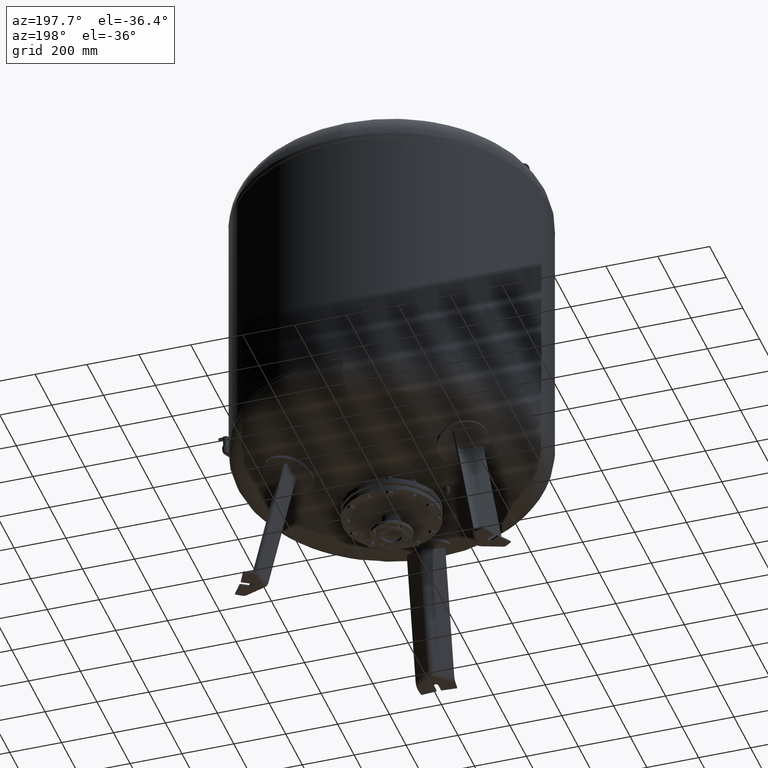
[diagram: clean part render]
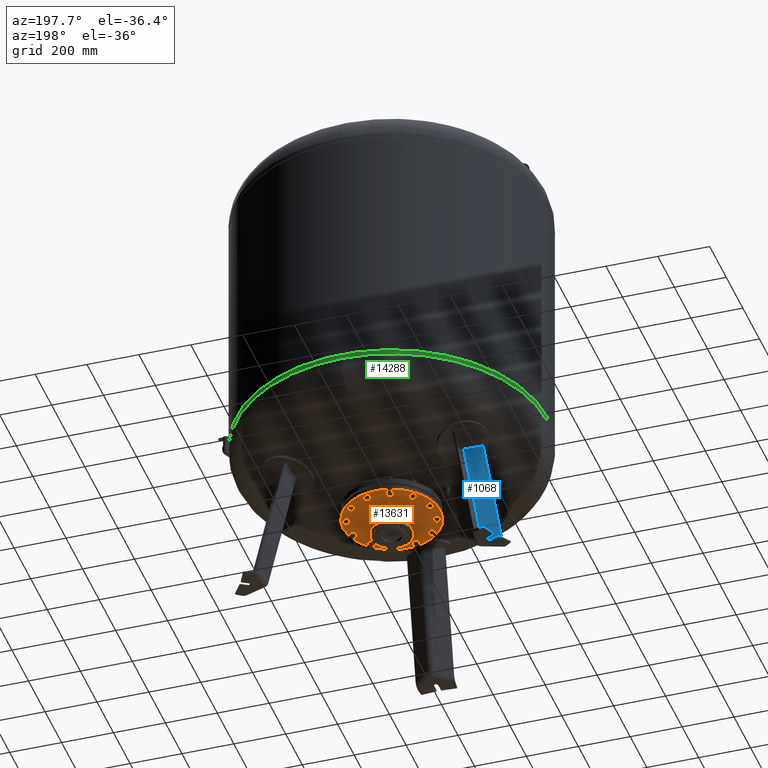
[diagram: same view with three faces highlighted in distinct colors, each labeled with its STEP entity id]
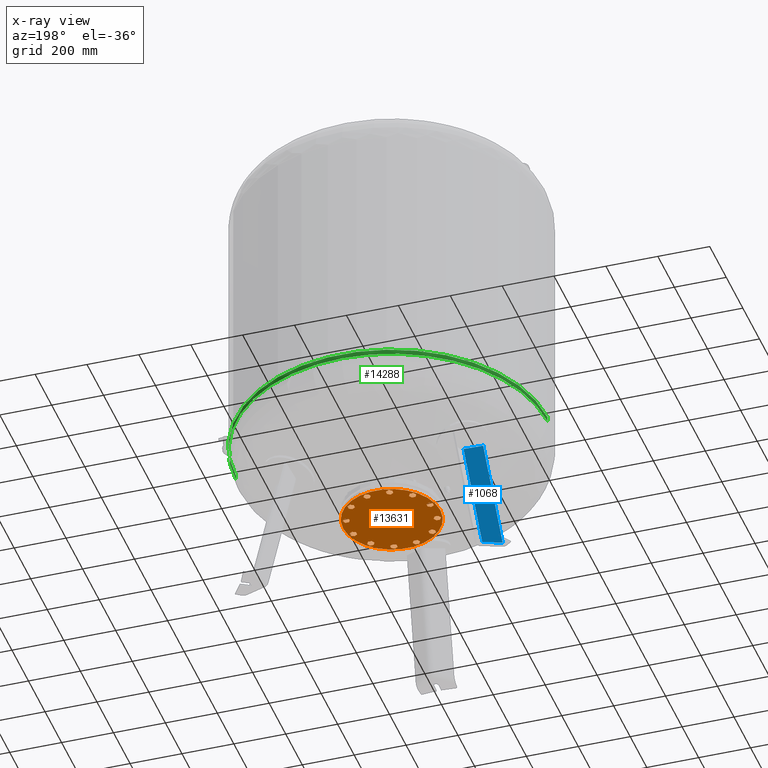
[diagram: x-ray of the same camera — body ghosted, the three highlighted faces saturated]
A machine part, auxiliary view with three faces highlighted in distinct colors.
The next image is the same camera in x-ray (body ghosted, the three faces saturated) — at least one of them is partly hidden behind the body in this view.
Their STEP definitions:

[orange] entity #13631 — the highlighted planar face has unit normal (0, 0, -1).
#5775=CARTESIAN_POINT('',(-38.050000000000018,-4.163799E-015,383.0));
#5776=VERTEX_POINT('',#5775);
#5792=CARTESIAN_POINT('',(38.049999999999983,-8.823426E-015,383.0));
#5793=VERTEX_POINT('',#5792);
#5800=CARTESIAN_POINT('',(-8.604691E-015,-4.163799E-015,383.0));
#5801=DIRECTION('',(0.0,0.0,-1.0));
#5802=DIRECTION('',(-1.0,0.0,0.0));
#5803=AXIS2_PLACEMENT_3D('',#5800,#5801,#5802);
#5804=CIRCLE('',#5803,38.050000000000004);
#5805=EDGE_CURVE('',#5793,#5776,#5804,.T.);
#5815=CARTESIAN_POINT('',(-187.500000000000000,-4.163799E-015,383.000000000000110));
#5816=VERTEX_POINT('',#5815);
#5825=CARTESIAN_POINT('',(187.500000000000000,-2.712517E-014,383.000000000000110));
#5826=VERTEX_POINT('',#5825);
#5827=CARTESIAN_POINT('',(-8.604691E-015,-4.163799E-015,383.000000000000110));
#5828=DIRECTION('',(0.0,0.0,-1.0));
#5829=DIRECTION('',(-1.0,0.0,0.0));
#5830=AXIS2_PLACEMENT_3D('',#5827,#5828,#5829);
#5831=CIRCLE('',#5830,187.500000000000000);
#5832=EDGE_CURVE('',#5826,#5816,#5831,.T.);
#7805=CARTESIAN_POINT('',(43.352190054672320,-175.648982363969960,383.0));
#7806=VERTEX_POINT('',#7805);
#7807=CARTESIAN_POINT('',(55.352190054672313,-168.720779133694460,383.0));
#7808=VERTEX_POINT('',#7807);
#7809=CARTESIAN_POINT('',(43.352190054672320,-175.648982363969960,383.0));
#7810=DIRECTION('',(0.866025403784439,0.500000000000000,0.0));
#7811=VECTOR('',#7810,13.856406460551009);
#7812=LINE('',#7809,#7811);
#7813=EDGE_CURVE('',#7806,#7808,#7812,.T.);
#7845=CARTESIAN_POINT('',(31.352190054672334,-168.720779133694460,383.0));
#7846=VERTEX_POINT('',#7845);
#7847=CARTESIAN_POINT('',(31.352190054672334,-168.720779133694460,383.0));
#7848=DIRECTION('',(0.866025403784439,-0.500000000000000,0.0));
#7849=VECTOR('',#7848,13.856406460551002);
#7850=LINE('',#7847,#7849);
#7851=EDGE_CURVE('',#7846,#7806,#7850,.T.);
#7876=CARTESIAN_POINT('',(31.352190054672349,-154.864372673143440,383.0));
#7877=VERTEX_POINT('',#7876);
#7878=CARTESIAN_POINT('',(31.352190054672349,-154.864372673143440,383.0));
#7879=DIRECTION('',(0.0,-1.0,0.0));
#7880=VECTOR('',#7879,13.856406460551028);
#7881=LINE('',#7878,#7880);
#7882=EDGE_CURVE('',#7877,#7846,#7881,.T.);
#7907=CARTESIAN_POINT('',(43.352190054672320,-147.936169442867940,383.0));
#7908=VERTEX_POINT('',#7907);
#7909=CARTESIAN_POINT('',(43.352190054672320,-147.936169442867940,383.0));
#7910=DIRECTION('',(-0.866025403784438,-0.500000000000000,0.0));
#7911=VECTOR('',#7910,13.856406460550989);
#7912=LINE('',#7909,#7911);
#7913=EDGE_CURVE('',#7908,#7877,#7912,.T.);
#7938=CARTESIAN_POINT('',(55.352190054672313,-154.864372673143440,383.0));
#7939=VERTEX_POINT('',#7938);
#7940=CARTESIAN_POINT('',(55.352190054672313,-168.720779133694460,383.0));
#7941=DIRECTION('',(0.0,1.0,0.0));
#7942=VECTOR('',#7941,13.856406460551028);
#7943=LINE('',#7940,#7942);
#7944=EDGE_CURVE('',#7808,#7939,#7943,.T.);
#7969=CARTESIAN_POINT('',(55.352190054672313,-154.864372673143440,383.0));
#7970=DIRECTION('',(-0.866025403784439,0.500000000000000,0.0));
#7971=VECTOR('',#7970,13.856406460551009);
#7972=LINE('',#7969,#7971);
#7973=EDGE_CURVE('',#7939,#7908,#7972,.T.);
#8279=CARTESIAN_POINT('',(125.368589079022360,-130.440385848746640,383.0));
#8280=VERTEX_POINT('',#8279);
#8281=CARTESIAN_POINT('',(132.296792309297840,-118.440385848746640,383.0));
#8282=VERTEX_POINT('',#8281);
#8283=CARTESIAN_POINT('',(125.368589079022360,-130.440385848746640,383.0));
#8284=DIRECTION('',(0.499999999999999,0.866025403784439,0.0));
#8285=VECTOR('',#8284,13.856406460551007);
#8286=LINE('',#8283,#8285);
#8287=EDGE_CURVE('',#8280,#8282,#8286,.T.);
#8319=CARTESIAN_POINT('',(111.512182618471340,-130.440385848746640,383.0));
#8320=VERTEX_POINT('',#8319);
#8321=CARTESIAN_POINT('',(111.512182618471340,-130.440385848746640,383.0));
#8322=DIRECTION('',(1.0,0.0,0.0));
#8323=VECTOR('',#8322,13.856406460551014);
#8324=LINE('',#8321,#8323);
#8325=EDGE_CURVE('',#8320,#8280,#8324,.T.);
#8350=CARTESIAN_POINT('',(104.583979388195840,-118.440385848746660,383.0));
#8351=VERTEX_POINT('',#8350);
#8352=CARTESIAN_POINT('',(104.583979388195840,-118.440385848746660,383.0));
#8353=DIRECTION('',(0.500000000000000,-0.866025403784439,0.0));
#8354=VECTOR('',#8353,13.856406460551002);
#8355=LINE('',#8352,#8354);
#8356=EDGE_CURVE('',#8351,#8320,#8355,.T.);
#8381=CARTESIAN_POINT('',(111.512182618471340,-106.440385848746640,383.0));
#8382=VERTEX_POINT('',#8381);
#8383=CARTESIAN_POINT('',(111.512182618471340,-106.440385848746640,383.0));
#8384=DIRECTION('',(-0.499999999999999,-0.866025403784439,0.0));
#8385=VECTOR('',#8384,13.856406460551026);
#8386=LINE('',#8383,#8385);
#8387=EDGE_CURVE('',#8382,#8351,#8386,.T.);
#8412=CARTESIAN_POINT('',(125.368589079022340,-106.440385848746640,383.0));
#8413=VERTEX_POINT('',#8412);
#8414=CARTESIAN_POINT('',(132.296792309297840,-118.440385848746640,383.0));
#8415=DIRECTION('',(-0.500000000000000,0.866025403784439,0.0));
#8416=VECTOR('',#8415,13.856406460551014);
#8417=LINE('',#8414,#8416);
#8418=EDGE_CURVE('',#8282,#8413,#8417,.T.);
#8443=CARTESIAN_POINT('',(125.368589079022340,-106.440385848746640,383.0));
#8444=DIRECTION('',(-1.0,0.0,0.0));
#8445=VECTOR('',#8444,13.856406460551000);
#8446=LINE('',#8443,#8445);
#8447=EDGE_CURVE('',#8413,#8382,#8446,.T.);
#8753=CARTESIAN_POINT('',(173.792575903418990,-50.280393284947714,383.0));
#8754=VERTEX_POINT('',#8753);
#8755=CARTESIAN_POINT('',(173.792575903418990,-36.423986824396700,383.0));
#8756=VERTEX_POINT('',#8755);
#8757=CARTESIAN_POINT('',(173.792575903418990,-50.280393284947714,383.0));
#8758=DIRECTION('',(0.0,1.0,0.0));
#8759=VECTOR('',#8758,13.856406460551014);
#8760=LINE('',#8757,#8759);
#8761=EDGE_CURVE('',#8754,#8756,#8760,.T.);
#8793=CARTESIAN_POINT('',(161.792575903418990,-57.208596515223185,383.0));
#8794=VERTEX_POINT('',#8793);
#8795=CARTESIAN_POINT('',(161.792575903418990,-57.208596515223185,383.0));
#8796=DIRECTION('',(0.866025403784440,0.499999999999998,0.0));
#8797=VECTOR('',#8796,13.856406460551000);
#8798=LINE('',#8795,#8797);
#8799=EDGE_CURVE('',#8794,#8754,#8798,.T.);
#8824=CARTESIAN_POINT('',(149.792575903418990,-50.280393284947706,383.0));
#8825=VERTEX_POINT('',#8824);
#8826=CARTESIAN_POINT('',(149.792575903418990,-50.280393284947706,383.0));
#8827=DIRECTION('',(0.866025403784440,-0.499999999999998,0.0));
#8828=VECTOR('',#8827,13.856406460551003);
#8829=LINE('',#8826,#8828);
#8830=EDGE_CURVE('',#8825,#8794,#8829,.T.);
#8855=CARTESIAN_POINT('',(149.792575903419020,-36.423986824396692,383.0));
#8856=VERTEX_POINT('',#8855);
#8857=CARTESIAN_POINT('',(149.792575903419020,-36.423986824396692,383.0));
#8858=DIRECTION('',(0.0,-1.0,0.0));
#8859=VECTOR('',#8858,13.856406460551014);
#8860=LINE('',#8857,#8859);
#8861=EDGE_CURVE('',#8856,#8825,#8860,.T.);
#8886=CARTESIAN_POINT('',(161.792575903418990,-29.495783594121182,383.0));
#8887=VERTEX_POINT('',#8886);
#8888=CARTESIAN_POINT('',(173.792575903418990,-36.423986824396700,383.0));
#8889=DIRECTION('',(-0.866025403784438,0.500000000000000,0.0));
#8890=VECTOR('',#8889,13.856406460551023);
#8891=LINE('',#8888,#8890);
#8892=EDGE_CURVE('',#8756,#8887,#8891,.T.);
#8917=CARTESIAN_POINT('',(161.792575903418990,-29.495783594121182,383.0));
#8918=DIRECTION('',(-0.866025403784438,-0.500000000000001,0.0));
#8919=VECTOR('',#8918,13.856406460550994);
#8920=LINE('',#8917,#8919);
#8921=EDGE_CURVE('',#8887,#8856,#8920,.T.);
#9227=CARTESIAN_POINT('',(175.648982363969960,43.352190054672327,383.0));
#9228=VERTEX_POINT('',#9227);
#9229=CARTESIAN_POINT('',(168.720779133694460,55.352190054672320,383.0));
#9230=VERTEX_POINT('',#9229);
#9231=CARTESIAN_POINT('',(175.648982363969960,43.352190054672327,383.0));
#9232=DIRECTION('',(-0.500000000000000,0.866025403784439,0.0));
#9233=VECTOR('',#9232,13.856406460551009);
#9234=LINE('',#9231,#9233);
#9235=EDGE_CURVE('',#9228,#9230,#9234,.T.);
#9267=CARTESIAN_POINT('',(168.720779133694460,31.352190054672338,383.0));
#9268=VERTEX_POINT('',#9267);
#9269=CARTESIAN_POINT('',(168.720779133694460,31.352190054672338,383.0));
#9270=DIRECTION('',(0.500000000000000,0.866025403784439,0.0));
#9271=VECTOR('',#9270,13.856406460551003);
#9272=LINE('',#9269,#9271);
#9273=EDGE_CURVE('',#9268,#9228,#9272,.T.);
#9298=CARTESIAN_POINT('',(154.864372673143440,31.352190054672352,383.0));
#9299=VERTEX_POINT('',#9298);
#9300=CARTESIAN_POINT('',(154.864372673143440,31.352190054672352,383.0));
#9301=DIRECTION('',(1.0,0.0,0.0));
#9302=VECTOR('',#9301,13.856406460551028);
#9303=LINE('',#9300,#9302);
#9304=EDGE_CURVE('',#9299,#9268,#9303,.T.);
#9329=CARTESIAN_POINT('',(147.936169442867940,43.352190054672327,383.0));
#9330=VERTEX_POINT('',#9329);
#9331=CARTESIAN_POINT('',(147.936169442867940,43.352190054672327,383.0));
#9332=DIRECTION('',(0.500000000000000,-0.866025403784439,0.0));
#9333=VECTOR('',#9332,13.856406460550991);
#9334=LINE('',#9331,#9333);
#9335=EDGE_CURVE('',#9330,#9299,#9334,.T.);
#9360=CARTESIAN_POINT('',(154.864372673143440,55.352190054672320,383.0));
#9361=VERTEX_POINT('',#9360);
#9362=CARTESIAN_POINT('',(168.720779133694460,55.352190054672320,383.0));
#9363=DIRECTION('',(-1.0,0.0,0.0));
#9364=VECTOR('',#9363,13.856406460551028);
#9365=LINE('',#9362,#9364);
#9366=EDGE_CURVE('',#9230,#9361,#9365,.T.);
#9391=CARTESIAN_POINT('',(154.864372673143440,55.352190054672320,383.0));
#9392=DIRECTION('',(-0.500000000000000,-0.866025403784439,0.0));
#9393=VECTOR('',#9392,13.856406460551009);
#9394=LINE('',#9391,#9393);
#9395=EDGE_CURVE('',#9361,#9330,#9394,.T.);
#9701=CARTESIAN_POINT('',(130.440385848746670,125.368589079022270,383.0));
#9702=VERTEX_POINT('',#9701);
#9703=CARTESIAN_POINT('',(118.440385848746690,132.296792309297790,383.0));
#9704=VERTEX_POINT('',#9703);
#9705=CARTESIAN_POINT('',(130.440385848746670,125.368589079022270,383.0));
#9706=DIRECTION('',(-0.866025403784438,0.500000000000001,0.0));
#9707=VECTOR('',#9706,13.856406460551009);
#9708=LINE('',#9705,#9707);
#9709=EDGE_CURVE('',#9702,#9704,#9708,.T.);
#9741=CARTESIAN_POINT('',(130.440385848746670,111.512182618471270,383.0));
#9742=VERTEX_POINT('',#9741);
#9743=CARTESIAN_POINT('',(130.440385848746670,111.512182618471270,383.0));
#9744=DIRECTION('',(0.0,1.0,0.0));
#9745=VECTOR('',#9744,13.856406460551000);
#9746=LINE('',#9743,#9745);
#9747=EDGE_CURVE('',#9742,#9702,#9746,.T.);
#9772=CARTESIAN_POINT('',(118.440385848746700,104.583979388195790,383.0));
#9773=VERTEX_POINT('',#9772);
#9774=CARTESIAN_POINT('',(118.440385848746700,104.583979388195790,383.0));
#9775=DIRECTION('',(0.866025403784439,0.500000000000000,0.0));
#9776=VECTOR('',#9775,13.856406460550982);
#9777=LINE('',#9774,#9776);
#9778=EDGE_CURVE('',#9773,#9742,#9777,.T.);
#9803=CARTESIAN_POINT('',(106.440385848746700,111.512182618471290,383.0));
#9804=VERTEX_POINT('',#9803);
#9805=CARTESIAN_POINT('',(106.440385848746700,111.512182618471290,383.0));
#9806=DIRECTION('',(0.866025403784439,-0.500000000000000,0.0));
#9807=VECTOR('',#9806,13.856406460551014);
#9808=LINE('',#9805,#9807);
#9809=EDGE_CURVE('',#9804,#9773,#9808,.T.);
#9834=CARTESIAN_POINT('',(106.440385848746700,125.368589079022270,383.0));
#9835=VERTEX_POINT('',#9834);
#9836=CARTESIAN_POINT('',(118.440385848746690,132.296792309297790,383.0));
#9837=DIRECTION('',(-0.866025403784438,-0.500000000000001,0.0));
#9838=VECTOR('',#9837,13.856406460551009);
#9839=LINE('',#9836,#9838);
#9840=EDGE_CURVE('',#9704,#9835,#9839,.T.);
#9865=CARTESIAN_POINT('',(106.440385848746700,125.368589079022270,383.0));
#9866=DIRECTION('',(0.0,-1.0,0.0));
#9867=VECTOR('',#9866,13.856406460550986);
#9868=LINE('',#9865,#9867);
#9869=EDGE_CURVE('',#9835,#9804,#9868,.T.);
#10175=CARTESIAN_POINT('',(50.280393284947706,173.792575903418990,383.0));
#10176=VERTEX_POINT('',#10175);
#10177=CARTESIAN_POINT('',(36.423986824396678,173.792575903418940,383.0));
#10178=VERTEX_POINT('',#10177);
#10179=CARTESIAN_POINT('',(50.280393284947706,173.792575903418990,383.0));
#10180=DIRECTION('',(-1.0,0.0,0.0));
#10181=VECTOR('',#10180,13.856406460551028);
#10182=LINE('',#10179,#10181);
#10183=EDGE_CURVE('',#10176,#10178,#10182,.T.);
#10215=CARTESIAN_POINT('',(57.208596515223178,161.792575903418990,383.0));
#10216=VERTEX_POINT('',#10215);
#10217=CARTESIAN_POINT('',(57.208596515223178,161.792575903418990,383.0));
#10218=DIRECTION('',(-0.499999999999998,0.866025403784440,0.0));
#10219=VECTOR('',#10218,13.856406460551000);
#10220=LINE('',#10217,#10219);
#10221=EDGE_CURVE('',#10216,#10176,#10220,.T.);
#10246=CARTESIAN_POINT('',(50.280393284947692,149.792575903418990,383.0));
#10247=VERTEX_POINT('',#10246);
#10248=CARTESIAN_POINT('',(50.280393284947692,149.792575903418990,383.0));
#10249=DIRECTION('',(0.499999999999999,0.866025403784439,0.0));
#10250=VECTOR('',#10249,13.856406460551007);
#10251=LINE('',#10248,#10250);
#10252=EDGE_CURVE('',#10247,#10216,#10251,.T.);
#10277=CARTESIAN_POINT('',(36.423986824396678,149.792575903418990,383.0));
#10278=VERTEX_POINT('',#10277);
#10279=CARTESIAN_POINT('',(36.423986824396678,149.792575903418990,383.0));
#10280=DIRECTION('',(1.0,0.0,0.0));
#10281=VECTOR('',#10280,13.856406460551014);
#10282=LINE('',#10279,#10281);
#10283=EDGE_CURVE('',#10278,#10247,#10282,.T.);
#10308=CARTESIAN_POINT('',(29.495783594121185,161.792575903418990,383.0));
#10309=VERTEX_POINT('',#10308);
#10310=CARTESIAN_POINT('',(36.423986824396678,173.792575903418940,383.0));
#10311=DIRECTION('',(-0.500000000000001,-0.866025403784438,0.0));
#10312=VECTOR('',#10311,13.856406460550961);
#10313=LINE('',#10310,#10312);
#10314=EDGE_CURVE('',#10178,#10309,#10313,.T.);
#10339=CARTESIAN_POINT('',(29.495783594121185,161.792575903418990,383.0));
#10340=DIRECTION('',(0.499999999999999,-0.866025403784439,0.0));
#10341=VECTOR('',#10340,13.856406460551010);
#10342=LINE('',#10339,#10341);
#10343=EDGE_CURVE('',#10309,#10278,#10342,.T.);
#10649=CARTESIAN_POINT('',(-43.352190054672327,175.648982363969990,383.0));
#10650=VERTEX_POINT('',#10649);
#10651=CARTESIAN_POINT('',(-55.352190054672306,168.720779133694460,383.0));
#10652=VERTEX_POINT('',#10651);
#10653=CARTESIAN_POINT('',(-43.352190054672327,175.648982363969990,383.0));
#10654=DIRECTION('',(-0.866025403784438,-0.500000000000002,0.0));
#10655=VECTOR('',#10654,13.856406460551009);
#10656=LINE('',#10653,#10655);
#10657=EDGE_CURVE('',#10650,#10652,#10656,.T.);
#10689=CARTESIAN_POINT('',(-31.352190054672313,168.720779133694490,383.0));
#10690=VERTEX_POINT('',#10689);
#10691=CARTESIAN_POINT('',(-31.352190054672313,168.720779133694490,383.0));
#10692=DIRECTION('',(-0.866025403784439,0.499999999999999,0.0));
#10693=VECTOR('',#10692,13.856406460551026);
#10694=LINE('',#10691,#10693);
#10695=EDGE_CURVE('',#10690,#10650,#10694,.T.);
#10720=CARTESIAN_POINT('',(-31.352190054672327,154.864372673143460,383.0));
#10721=VERTEX_POINT('',#10720);
#10722=CARTESIAN_POINT('',(-31.352190054672327,154.864372673143460,383.0));
#10723=DIRECTION('',(0.0,1.0,0.0));
#10724=VECTOR('',#10723,13.856406460551028);
#10725=LINE('',#10722,#10724);
#10726=EDGE_CURVE('',#10721,#10690,#10725,.T.);
#10751=CARTESIAN_POINT('',(-43.352190054672334,147.936169442867940,383.0));
#10752=VERTEX_POINT('',#10751);
#10753=CARTESIAN_POINT('',(-43.352190054672334,147.936169442867940,383.0));
#10754=DIRECTION('',(0.866025403784438,0.500000000000001,0.0));
#10755=VECTOR('',#10754,13.856406460551034);
#10756=LINE('',#10753,#10755);
#10757=EDGE_CURVE('',#10752,#10721,#10756,.T.);
#10782=CARTESIAN_POINT('',(-55.352190054672306,154.864372673143460,383.0));
#10783=VERTEX_POINT('',#10782);
#10784=CARTESIAN_POINT('',(-55.352190054672306,168.720779133694460,383.0));
#10785=DIRECTION('',(0.0,-1.0,0.0));
#10786=VECTOR('',#10785,13.856406460551000);
#10787=LINE('',#10784,#10786);
#10788=EDGE_CURVE('',#10652,#10783,#10787,.T.);
#10813=CARTESIAN_POINT('',(-55.352190054672306,154.864372673143460,383.0));
#10814=DIRECTION('',(0.866025403784437,-0.500000000000002,0.0));
#10815=VECTOR('',#10814,13.856406460551003);
#10816=LINE('',#10813,#10815);
#10817=EDGE_CURVE('',#10783,#10752,#10816,.T.);
#11123=CARTESIAN_POINT('',(-125.368589079022270,130.440385848746700,383.0));
#11124=VERTEX_POINT('',#11123);
#11125=CARTESIAN_POINT('',(-132.296792309297790,118.440385848746690,383.0));
#11126=VERTEX_POINT('',#11125);
#11127=CARTESIAN_POINT('',(-125.368589079022270,130.440385848746700,383.0));
#11128=DIRECTION('',(-0.500000000000000,-0.866025403784439,0.0));
#11129=VECTOR('',#11128,13.856406460551034);
#11130=LINE('',#11127,#11129);
#11131=EDGE_CURVE('',#11124,#11126,#11130,.T.);
#11163=CARTESIAN_POINT('',(-111.512182618471270,130.440385848746670,383.0));
#11164=VERTEX_POINT('',#11163);
#11165=CARTESIAN_POINT('',(-111.512182618471270,130.440385848746670,383.0));
#11166=DIRECTION('',(-1.0,0.0,0.0));
#11167=VECTOR('',#11166,13.856406460551000);
#11168=LINE('',#11165,#11167);
#11169=EDGE_CURVE('',#11164,#11124,#11168,.T.);
#11194=CARTESIAN_POINT('',(-104.583979388195760,118.440385848746690,383.0));
#11195=VERTEX_POINT('',#11194);
#11196=CARTESIAN_POINT('',(-104.583979388195760,118.440385848746690,383.0));
#11197=DIRECTION('',(-0.500000000000001,0.866025403784438,0.0));
#11198=VECTOR('',#11197,13.856406460551009);
#11199=LINE('',#11196,#11198);
#11200=EDGE_CURVE('',#11195,#11164,#11199,.T.);
#11225=CARTESIAN_POINT('',(-111.512182618471270,106.440385848746700,383.0));
#11226=VERTEX_POINT('',#11225);
#11227=CARTESIAN_POINT('',(-111.512182618471270,106.440385848746700,383.0));
#11228=DIRECTION('',(0.500000000000001,0.866025403784438,0.0));
#11229=VECTOR('',#11228,13.856406460551009);
#11230=LINE('',#11227,#11229);
#11231=EDGE_CURVE('',#11226,#11195,#11230,.T.);
#11256=CARTESIAN_POINT('',(-125.368589079022270,106.440385848746700,383.0));
#11257=VERTEX_POINT('',#11256);
#11258=CARTESIAN_POINT('',(-132.296792309297790,118.440385848746690,383.0));
#11259=DIRECTION('',(0.500000000000001,-0.866025403784438,0.0));
#11260=VECTOR('',#11259,13.856406460551009);
#11261=LINE('',#11258,#11260);
#11262=EDGE_CURVE('',#11126,#11257,#11261,.T.);
#11287=CARTESIAN_POINT('',(-125.368589079022270,106.440385848746700,383.0));
#11288=DIRECTION('',(1.0,0.0,0.0));
#11289=VECTOR('',#11288,13.856406460551000);
#11290=LINE('',#11287,#11289);
#11291=EDGE_CURVE('',#11257,#11226,#11290,.T.);
#11597=CARTESIAN_POINT('',(-173.792575903418960,50.280393284947714,383.0));
#11598=VERTEX_POINT('',#11597);
#11599=CARTESIAN_POINT('',(-173.792575903418960,36.423986824396714,383.0));
#11600=VERTEX_POINT('',#11599);
#11601=CARTESIAN_POINT('',(-173.792575903418960,50.280393284947714,383.0));
#11602=DIRECTION('',(0.0,-1.0,0.0));
#11603=VECTOR('',#11602,13.856406460551000);
#11604=LINE('',#11601,#11603);
#11605=EDGE_CURVE('',#11598,#11600,#11604,.T.);
#11637=CARTESIAN_POINT('',(-161.792575903419020,57.208596515223206,383.0));
#11638=VERTEX_POINT('',#11637);
#11639=CARTESIAN_POINT('',(-161.792575903419020,57.208596515223206,383.0));
#11640=DIRECTION('',(-0.866025403784438,-0.500000000000001,0.0));
#11641=VECTOR('',#11640,13.856406460550961);
#11642=LINE('',#11639,#11641);
#11643=EDGE_CURVE('',#11638,#11598,#11642,.T.);
#11668=CARTESIAN_POINT('',(-149.792575903418990,50.280393284947714,383.0));
#11669=VERTEX_POINT('',#11668);
#11670=CARTESIAN_POINT('',(-149.792575903418990,50.280393284947714,383.0));
#11671=DIRECTION('',(-0.866025403784440,0.499999999999998,0.0));
#11672=VECTOR('',#11671,13.856406460551035);
#11673=LINE('',#11670,#11672);
#11674=EDGE_CURVE('',#11669,#11638,#11673,.T.);
#11699=CARTESIAN_POINT('',(-149.792575903418990,36.423986824396685,383.0));
#11700=VERTEX_POINT('',#11699);
#11701=CARTESIAN_POINT('',(-149.792575903418990,36.423986824396685,383.0));
#11702=DIRECTION('',(0.0,1.0,0.0));
#11703=VECTOR('',#11702,13.856406460551028);
#11704=LINE('',#11701,#11703);
#11705=EDGE_CURVE('',#11700,#11669,#11704,.T.);
#11730=CARTESIAN_POINT('',(-161.792575903418990,29.495783594121210,383.0));
#11731=VERTEX_POINT('',#11730);
#11732=CARTESIAN_POINT('',(-173.792575903418960,36.423986824396714,383.0));
#11733=DIRECTION('',(0.866025403784438,-0.500000000000001,0.0));
#11734=VECTOR('',#11733,13.856406460550991);
#11735=LINE('',#11732,#11734);
#11736=EDGE_CURVE('',#11600,#11731,#11735,.T.);
#11761=CARTESIAN_POINT('',(-161.792575903418990,29.495783594121210,383.0));
#11762=DIRECTION('',(0.866025403784440,0.499999999999998,0.0));
#11763=VECTOR('',#11762,13.856406460551002);
#11764=LINE('',#11761,#11763);
#11765=EDGE_CURVE('',#11731,#11700,#11764,.T.);
#12071=CARTESIAN_POINT('',(-175.648982363969990,-43.352190054672270,383.0));
#12072=VERTEX_POINT('',#12071);
#12073=CARTESIAN_POINT('',(-168.720779133694490,-55.352190054672263,383.0));
#12074=VERTEX_POINT('',#12073);
#12075=CARTESIAN_POINT('',(-175.648982363969990,-43.352190054672270,383.0));
#12076=DIRECTION('',(0.500000000000000,-0.866025403784439,0.0));
#12077=VECTOR('',#12076,13.856406460551009);
#12078=LINE('',#12075,#12077);
#12079=EDGE_CURVE('',#12072,#12074,#12078,.T.);
#12111=CARTESIAN_POINT('',(-168.720779133694490,-31.352190054672281,383.0));
#12112=VERTEX_POINT('',#12111);
#12113=CARTESIAN_POINT('',(-168.720779133694490,-31.352190054672281,383.0));
#12114=DIRECTION('',(-0.500000000000000,-0.866025403784439,0.0));
#12115=VECTOR('',#12114,13.856406460551003);
#12116=LINE('',#12113,#12115);
#12117=EDGE_CURVE('',#12112,#12072,#12116,.T.);
#12142=CARTESIAN_POINT('',(-154.864372673143460,-31.352190054672299,383.0));
#12143=VERTEX_POINT('',#12142);
#12144=CARTESIAN_POINT('',(-154.864372673143460,-31.352190054672299,383.0));
#12145=DIRECTION('',(-1.0,0.0,0.0));
#12146=VECTOR('',#12145,13.856406460551028);
#12147=LINE('',#12144,#12146);
#12148=EDGE_CURVE('',#12143,#12112,#12147,.T.);
#12173=CARTESIAN_POINT('',(-147.936169442867960,-43.352190054672299,383.0));
#12174=VERTEX_POINT('',#12173);
#12175=CARTESIAN_POINT('',(-147.936169442867960,-43.352190054672299,383.0));
#12176=DIRECTION('',(-0.500000000000000,0.866025403784439,0.0));
#12177=VECTOR('',#12176,13.856406460551014);
#12178=LINE('',#12175,#12177);
#12179=EDGE_CURVE('',#12174,#12143,#12178,.T.);
#12204=CARTESIAN_POINT('',(-154.864372673143460,-55.352190054672263,383.0));
#12205=VERTEX_POINT('',#12204);
#12206=CARTESIAN_POINT('',(-168.720779133694490,-55.352190054672263,383.0));
#12207=DIRECTION('',(1.0,0.0,0.0));
#12208=VECTOR('',#12207,13.856406460551028);
#12209=LINE('',#12206,#12208);
#12210=EDGE_CURVE('',#12074,#12205,#12209,.T.);
#12235=CARTESIAN_POINT('',(-154.864372673143460,-55.352190054672263,383.0));
#12236=DIRECTION('',(0.500000000000001,0.866025403784438,0.0));
#12237=VECTOR('',#12236,13.856406460550984);
#12238=LINE('',#12235,#12237);
#12239=EDGE_CURVE('',#12205,#12174,#12238,.T.);
#12545=CARTESIAN_POINT('',(-130.440385848746730,-125.368589079022260,383.0));
#12546=VERTEX_POINT('',#12545);
#12547=CARTESIAN_POINT('',(-118.440385848746730,-132.296792309297760,383.0));
#12548=VERTEX_POINT('',#12547);
#12549=CARTESIAN_POINT('',(-130.440385848746730,-125.368589079022260,383.0));
#12550=DIRECTION('',(0.866025403784439,-0.500000000000000,0.0));
#12551=VECTOR('',#12550,13.856406460551014);
#12552=LINE('',#12549,#12551);
#12553=EDGE_CURVE('',#12546,#12548,#12552,.T.);
#12585=CARTESIAN_POINT('',(-130.440385848746700,-111.512182618471260,383.0));
#12586=VERTEX_POINT('',#12585);
#12587=CARTESIAN_POINT('',(-130.440385848746700,-111.512182618471260,383.0));
#12588=DIRECTION('',(0.0,-1.0,0.0));
#12589=VECTOR('',#12588,13.856406460551000);
#12590=LINE('',#12587,#12589);
#12591=EDGE_CURVE('',#12586,#12546,#12590,.T.);
#12616=CARTESIAN_POINT('',(-118.440385848746700,-104.583979388195760,383.0));
#12617=VERTEX_POINT('',#12616);
#12618=CARTESIAN_POINT('',(-118.440385848746700,-104.583979388195760,383.0));
#12619=DIRECTION('',(-0.866025403784439,-0.500000000000000,0.0));
#12620=VECTOR('',#12619,13.856406460551014);
#12621=LINE('',#12618,#12620);
#12622=EDGE_CURVE('',#12617,#12586,#12621,.T.);
#12647=CARTESIAN_POINT('',(-106.440385848746710,-111.512182618471270,383.0));
#12648=VERTEX_POINT('',#12647);
#12649=CARTESIAN_POINT('',(-106.440385848746710,-111.512182618471270,383.0));
#12650=DIRECTION('',(-0.866025403784438,0.500000000000001,0.0));
#12651=VECTOR('',#12650,13.856406460551009);
#12652=LINE('',#12649,#12651);
#12653=EDGE_CURVE('',#12648,#12617,#12652,.T.);
#12678=CARTESIAN_POINT('',(-106.440385848746710,-125.368589079022260,383.0));
#12679=VERTEX_POINT('',#12678);
#12680=CARTESIAN_POINT('',(-118.440385848746730,-132.296792309297760,383.0));
#12681=DIRECTION('',(0.866025403784439,0.499999999999999,0.0));
#12682=VECTOR('',#12681,13.856406460551026);
#12683=LINE('',#12680,#12682);
#12684=EDGE_CURVE('',#12548,#12679,#12683,.T.);
#12709=CARTESIAN_POINT('',(-106.440385848746710,-125.368589079022260,383.0));
#12710=DIRECTION('',(0.0,1.0,0.0));
#12711=VECTOR('',#12710,13.856406460550986);
#12712=LINE('',#12709,#12711);
#12713=EDGE_CURVE('',#12679,#12648,#12712,.T.);
#13315=CARTESIAN_POINT('',(-50.280393284947756,-173.792575903418960,383.0));
#13316=VERTEX_POINT('',#13315);
#13317=CARTESIAN_POINT('',(-36.423986824396742,-173.792575903418960,383.0));
#13318=VERTEX_POINT('',#13317);
#13319=CARTESIAN_POINT('',(-50.280393284947756,-173.792575903418960,383.0));
#13320=DIRECTION('',(1.0,0.0,0.0));
#13321=VECTOR('',#13320,13.856406460551014);
#13322=LINE('',#13319,#13321);
#13323=EDGE_CURVE('',#13316,#13318,#13322,.T.);
#13355=CARTESIAN_POINT('',(-57.208596515223249,-161.792575903418990,383.0));
#13356=VERTEX_POINT('',#13355);
#13357=CARTESIAN_POINT('',(-57.208596515223249,-161.792575903418990,383.0));
#13358=DIRECTION('',(0.500000000000000,-0.866025403784439,0.0));
#13359=VECTOR('',#13358,13.856406460550986);
#13360=LINE('',#13357,#13359);
#13361=EDGE_CURVE('',#13356,#13316,#13360,.T.);
#13386=CARTESIAN_POINT('',(-50.280393284947735,-149.792575903418990,383.0));
#13387=VERTEX_POINT('',#13386);
#13388=CARTESIAN_POINT('',(-50.280393284947735,-149.792575903418990,383.0));
#13389=DIRECTION('',(-0.500000000000000,-0.866025403784438,0.0));
#13390=VECTOR('',#13389,13.856406460551021);
#13391=LINE('',#13388,#13390);
#13392=EDGE_CURVE('',#13387,#13356,#13391,.T.);
#13417=CARTESIAN_POINT('',(-36.423986824396721,-149.792575903418990,383.0));
#13418=VERTEX_POINT('',#13417);
#13419=CARTESIAN_POINT('',(-36.423986824396721,-149.792575903418990,383.0));
#13420=DIRECTION('',(-1.0,0.0,0.0));
#13421=VECTOR('',#13420,13.856406460551014);
#13422=LINE('',#13419,#13421);
#13423=EDGE_CURVE('',#13418,#13387,#13422,.T.);
#13448=CARTESIAN_POINT('',(-29.495783594121228,-161.792575903418990,383.0));
#13449=VERTEX_POINT('',#13448);
#13450=CARTESIAN_POINT('',(-36.423986824396742,-173.792575903418960,383.0));
#13451=DIRECTION('',(0.500000000000001,0.866025403784438,0.0));
#13452=VECTOR('',#13451,13.856406460550996);
#13453=LINE('',#13450,#13452);
#13454=EDGE_CURVE('',#13318,#13449,#13453,.T.);
#13479=CARTESIAN_POINT('',(-29.495783594121228,-161.792575903418990,383.0));
#13480=DIRECTION('',(-0.499999999999999,0.866025403784439,0.0));
#13481=VECTOR('',#13480,13.856406460551010);
#13482=LINE('',#13479,#13481);
#13483=EDGE_CURVE('',#13449,#13418,#13482,.T.);
#13510=CARTESIAN_POINT('',(-19.025000000000009,-4.163799E-015,383.0));
#13511=DIRECTION('',(0.0,0.0,-1.0));
#13512=DIRECTION('',(0.0,-1.0,0.0));
#13513=AXIS2_PLACEMENT_3D('',#13510,#13511,#13512);
#13514=PLANE('',#13513);
#13515=CARTESIAN_POINT('',(-8.604691E-015,-4.163799E-015,383.000000000000110));
#13516=DIRECTION('',(0.0,0.0,-1.0));
#13517=DIRECTION('',(-1.0,0.0,0.0));
#13518=AXIS2_PLACEMENT_3D('',#13515,#13516,#13517);
#13519=CIRCLE('',#13518,187.500000000000000);
#13520=EDGE_CURVE('',#5816,#5826,#13519,.T.);
#13521=ORIENTED_EDGE('',*,*,#13520,.T.);
#13522=ORIENTED_EDGE('',*,*,#5832,.T.);
#13523=EDGE_LOOP('',(#13521,#13522));
#13524=FACE_OUTER_BOUND('',#13523,.T.);
#13525=ORIENTED_EDGE('',*,*,#7813,.T.);
#13526=ORIENTED_EDGE('',*,*,#7944,.T.);
#13527=ORIENTED_EDGE('',*,*,#7973,.T.);
#13528=ORIENTED_EDGE('',*,*,#7913,.T.);
#13529=ORIENTED_EDGE('',*,*,#7882,.T.);
#13530=ORIENTED_EDGE('',*,*,#7851,.T.);
#13531=EDGE_LOOP('',(#13525,#13526,#13527,#13528,#13529,#13530));
#13532=FACE_BOUND('',#13531,.T.);
#13533=ORIENTED_EDGE('',*,*,#8287,.T.);
#13534=ORIENTED_EDGE('',*,*,#8418,.T.);
#13535=ORIENTED_EDGE('',*,*,#8447,.T.);
#13536=ORIENTED_EDGE('',*,*,#8387,.T.);
#13537=ORIENTED_EDGE('',*,*,#8356,.T.);
#13538=ORIENTED_EDGE('',*,*,#8325,.T.);
#13539=EDGE_LOOP('',(#13533,#13534,#13535,#13536,#13537,#13538));
#13540=FACE_BOUND('',#13539,.T.);
#13541=ORIENTED_EDGE('',*,*,#8761,.T.);
#13542=ORIENTED_EDGE('',*,*,#8892,.T.);
#13543=ORIENTED_EDGE('',*,*,#8921,.T.);
#13544=ORIENTED_EDGE('',*,*,#8861,.T.);
#13545=ORIENTED_EDGE('',*,*,#8830,.T.);
#13546=ORIENTED_EDGE('',*,*,#8799,.T.);
#13547=EDGE_LOOP('',(#13541,#13542,#13543,#13544,#13545,#13546));
#13548=FACE_BOUND('',#13547,.T.);
#13549=ORIENTED_EDGE('',*,*,#9235,.T.);
#13550=ORIENTED_EDGE('',*,*,#9366,.T.);
#13551=ORIENTED_EDGE('',*,*,#9395,.T.);
#13552=ORIENTED_EDGE('',*,*,#9335,.T.);
#13553=ORIENTED_EDGE('',*,*,#9304,.T.);
#13554=ORIENTED_EDGE('',*,*,#9273,.T.);
#13555=EDGE_LOOP('',(#13549,#13550,#13551,#13552,#13553,#13554));
#13556=FACE_BOUND('',#13555,.T.);
#13557=ORIENTED_EDGE('',*,*,#9709,.T.);
#13558=ORIENTED_EDGE('',*,*,#9840,.T.);
#13559=ORIENTED_EDGE('',*,*,#9869,.T.);
#13560=ORIENTED_EDGE('',*,*,#9809,.T.);
#13561=ORIENTED_EDGE('',*,*,#9778,.T.);
#13562=ORIENTED_EDGE('',*,*,#9747,.T.);
#13563=EDGE_LOOP('',(#13557,#13558,#13559,#13560,#13561,#13562));
#13564=FACE_BOUND('',#13563,.T.);
#13565=ORIENTED_EDGE('',*,*,#10183,.T.);
#13566=ORIENTED_EDGE('',*,*,#10314,.T.);
#13567=ORIENTED_EDGE('',*,*,#10343,.T.);
#13568=ORIENTED_EDGE('',*,*,#10283,.T.);
#13569=ORIENTED_EDGE('',*,*,#10252,.T.);
#13570=ORIENTED_EDGE('',*,*,#10221,.T.);
#13571=EDGE_LOOP('',(#13565,#13566,#13567,#13568,#13569,#13570));
#13572=FACE_BOUND('',#13571,.T.);
#13573=ORIENTED_EDGE('',*,*,#10657,.T.);
#13574=ORIENTED_EDGE('',*,*,#10788,.T.);
#13575=ORIENTED_EDGE('',*,*,#10817,.T.);
#13576=ORIENTED_EDGE('',*,*,#10757,.T.);
#13577=ORIENTED_EDGE('',*,*,#10726,.T.);
#13578=ORIENTED_EDGE('',*,*,#10695,.T.);
#13579=EDGE_LOOP('',(#13573,#13574,#13575,#13576,#13577,#13578));
#13580=FACE_BOUND('',#13579,.T.);
#13581=ORIENTED_EDGE('',*,*,#11131,.T.);
#13582=ORIENTED_EDGE('',*,*,#11262,.T.);
#13583=ORIENTED_EDGE('',*,*,#11291,.T.);
#13584=ORIENTED_EDGE('',*,*,#11231,.T.);
#13585=ORIENTED_EDGE('',*,*,#11200,.T.);
#13586=ORIENTED_EDGE('',*,*,#11169,.T.);
#13587=EDGE_LOOP('',(#13581,#13582,#13583,#13584,#13585,#13586));
#13588=FACE_BOUND('',#13587,.T.);
#13589=ORIENTED_EDGE('',*,*,#11605,.T.);
#13590=ORIENTED_EDGE('',*,*,#11736,.T.);
#13591=ORIENTED_EDGE('',*,*,#11765,.T.);
#13592=ORIENTED_EDGE('',*,*,#11705,.T.);
#13593=ORIENTED_EDGE('',*,*,#11674,.T.);
#13594=ORIENTED_EDGE('',*,*,#11643,.T.);
#13595=EDGE_LOOP('',(#13589,#13590,#13591,#13592,#13593,#13594));
#13596=FACE_BOUND('',#13595,.T.);
#13597=ORIENTED_EDGE('',*,*,#12079,.T.);
#13598=ORIENTED_EDGE('',*,*,#12210,.T.);
#13599=ORIENTED_EDGE('',*,*,#12239,.T.);
#13600=ORIENTED_EDGE('',*,*,#12179,.T.);
#13601=ORIENTED_EDGE('',*,*,#12148,.T.);
#13602=ORIENTED_EDGE('',*,*,#12117,.T.);
#13603=EDGE_LOOP('',(#13597,#13598,#13599,#13600,#13601,#13602));
#13604=FACE_BOUND('',#13603,.T.);
#13605=ORIENTED_EDGE('',*,*,#12553,.T.);
#13606=ORIENTED_EDGE('',*,*,#12684,.T.);
#13607=ORIENTED_EDGE('',*,*,#12713,.T.);
#13608=ORIENTED_EDGE('',*,*,#12653,.T.);
#13609=ORIENTED_EDGE('',*,*,#12622,.T.);
#13610=ORIENTED_EDGE('',*,*,#12591,.T.);
#13611=EDGE_LOOP('',(#13605,#13606,#13607,#13608,#13609,#13610));
#13612=FACE_BOUND('',#13611,.T.);
#13613=ORIENTED_EDGE('',*,*,#13323,.T.);
#13614=ORIENTED_EDGE('',*,*,#13454,.T.);
#13615=ORIENTED_EDGE('',*,*,#13483,.T.);
#13616=ORIENTED_EDGE('',*,*,#13423,.T.);
#13617=ORIENTED_EDGE('',*,*,#13392,.T.);
#13618=ORIENTED_EDGE('',*,*,#13361,.T.);
#13619=EDGE_LOOP('',(#13613,#13614,#13615,#13616,#13617,#13618));
#13620=FACE_BOUND('',#13619,.T.);
#13621=CARTESIAN_POINT('',(-8.604691E-015,-4.163799E-015,383.0));
#13622=DIRECTION('',(0.0,0.0,-1.0));
#13623=DIRECTION('',(-1.0,0.0,0.0));
#13624=AXIS2_PLACEMENT_3D('',#13621,#13622,#13623);
#13625=CIRCLE('',#13624,38.050000000000004);
#13626=EDGE_CURVE('',#5776,#5793,#13625,.T.);
#13627=ORIENTED_EDGE('',*,*,#13626,.F.);
#13628=ORIENTED_EDGE('',*,*,#5805,.F.);
#13629=EDGE_LOOP('',(#13627,#13628));
#13630=FACE_BOUND('',#13629,.T.);
#13631=ADVANCED_FACE('',(#13524,#13532,#13540,#13548,#13556,#13564,#13572,#13580,#13588,#13596,#13604,#13612,#13620,#13630),#13514,.T.);

[blue] entity #1068 — the highlighted planar face has unit normal (-0.3243, 0.9325, 0.1588).
#512=CARTESIAN_POINT('',(-420.404321888330290,224.087779953756920,27.029948423057284));
#513=VERTEX_POINT('',#512);
#522=CARTESIAN_POINT('',(-491.178961512120280,199.476382368576220,27.029948423057281));
#523=VERTEX_POINT('',#522);
#531=CARTESIAN_POINT('',(-491.178961512120280,199.476382368576220,27.029948423057281));
#532=DIRECTION('',(0.944521094592692,0.328450760190052,4.741265E-017));
#533=VECTOR('',#532,74.931772333057651);
#534=LINE('',#531,#533);
#535=EDGE_CURVE('',#523,#513,#534,.T.);
#851=CARTESIAN_POINT('',(-331.808702377670270,172.937075180255650,508.320240019970470));
#852=VERTEX_POINT('',#851);
#882=CARTESIAN_POINT('',(-399.179928245355650,146.360715746824270,526.809077370483350));
#883=VERTEX_POINT('',#882);
#884=CARTESIAN_POINT('',(-77.536866522000253,96.546967477290963,1476.144501634031000));
#885=DIRECTION('',(0.324282864533177,-0.932535537409927,-0.158802063077709));
#886=DIRECTION('',(0.180056805991956,-0.103955845408880,0.978147600733805));
#887=AXIS2_PLACEMENT_3D('',#884,#885,#886);
#888=CIRCLE('',#887,1003.580298946269700);
#889=EDGE_CURVE('',#883,#852,#888,.T.);
#1043=CARTESIAN_POINT('',(-420.404321888330290,224.087779953756920,27.029948423057284));
#1044=DIRECTION('',(0.180056805991956,-0.103955845408880,0.978147600733806));
#1045=VECTOR('',#1044,492.042603013951630);
#1046=LINE('',#1043,#1045);
#1047=EDGE_CURVE('',#513,#852,#1046,.T.);
#1052=CARTESIAN_POINT('',(-500.117346623909440,204.636961418988250,-21.527282742766886));
#1053=DIRECTION('',(-0.324282864533177,0.932535537409927,0.158802063077709));
#1054=DIRECTION('',(0.180056805991956,-0.103955845408880,0.978147600733806));
#1055=AXIS2_PLACEMENT_3D('',#1052,#1053,#1054);
#1056=PLANE('',#1055);
#1057=ORIENTED_EDGE('',*,*,#889,.T.);
#1058=ORIENTED_EDGE('',*,*,#1047,.F.);
#1059=ORIENTED_EDGE('',*,*,#535,.F.);
#1060=CARTESIAN_POINT('',(-491.178961512120280,199.476382368576220,27.029948423057281));
#1061=DIRECTION('',(0.180056805991956,-0.103955845408880,0.978147600733806));
#1062=VECTOR('',#1061,510.944491989237750);
#1063=LINE('',#1060,#1062);
#1064=EDGE_CURVE('',#523,#883,#1063,.T.);
#1065=ORIENTED_EDGE('',*,*,#1064,.T.);
#1066=EDGE_LOOP('',(#1057,#1058,#1059,#1065));
#1067=FACE_OUTER_BOUND('',#1066,.T.);
#1068=ADVANCED_FACE('',(#1067),#1056,.T.);

[green] entity #14288 — the highlighted cylindrical surface (partial cylindrical patch) has radius 600 mm, axis along (-0, -0, 1).
#14238=CARTESIAN_POINT('',(-3.693994E-014,-4.510566E-014,705.543771283136150));
#14239=DIRECTION('',(-1.504413E-016,-1.836970E-016,1.0));
#14240=DIRECTION('',(-1.0,0.0,0.0));
#14241=AXIS2_PLACEMENT_3D('',#14238,#14239,#14240);
#14242=CYLINDRICAL_SURFACE('',#14241,599.999999999999890);
#14243=CARTESIAN_POINT('',(-600.000000000000110,-4.684274E-014,715.0));
#14244=VERTEX_POINT('',#14243);
#14245=CARTESIAN_POINT('',(-600.0,-4.336858E-014,696.087542566272190));
#14246=VERTEX_POINT('',#14245);
#14247=CARTESIAN_POINT('',(-600.000000000000110,-4.684274E-014,715.0));
#14248=DIRECTION('',(0.0,0.0,-1.0));
#14249=VECTOR('',#14248,18.912457433727809);
#14250=LINE('',#14247,#14249);
#14251=EDGE_CURVE('',#14244,#14246,#14250,.T.);
#14252=ORIENTED_EDGE('',*,*,#14251,.F.);
#14253=CARTESIAN_POINT('',(599.999999999999890,2.663364E-014,715.000000000000110));
#14254=VERTEX_POINT('',#14253);
#14255=CARTESIAN_POINT('',(-3.836254E-014,-4.684274E-014,715.0));
#14256=DIRECTION('',(0.0,0.0,1.0));
#14257=DIRECTION('',(-1.0,0.0,0.0));
#14258=AXIS2_PLACEMENT_3D('',#14255,#14256,#14257);
#14259=CIRCLE('',#14258,600.0);
#14260=EDGE_CURVE('',#14254,#14244,#14259,.T.);
#14261=ORIENTED_EDGE('',*,*,#14260,.F.);
#14262=CARTESIAN_POINT('',(599.999999999999890,3.010780E-014,696.087542566272300));
#14263=VERTEX_POINT('',#14262);
#14264=CARTESIAN_POINT('',(599.999999999999890,2.663364E-014,715.000000000000110));
#14265=DIRECTION('',(0.0,0.0,-1.0));
#14266=VECTOR('',#14265,18.912457433727809);
#14267=LINE('',#14264,#14266);
#14268=EDGE_CURVE('',#14254,#14263,#14267,.T.);
#14269=ORIENTED_EDGE('',*,*,#14268,.T.);
#14270=CARTESIAN_POINT('',(-1.445307E-013,600.0,696.087542566272420));
#14271=VERTEX_POINT('',#14270);
#14272=CARTESIAN_POINT('',(-3.551733E-014,-4.336858E-014,696.087542566272300));
#14273=DIRECTION('',(0.0,0.0,1.0));
#14274=DIRECTION('',(-1.0,0.0,0.0));
#14275=AXIS2_PLACEMENT_3D('',#14272,#14273,#14274);
#14276=CIRCLE('',#14275,600.0);
#14277=EDGE_CURVE('',#14263,#14271,#14276,.T.);
#14278=ORIENTED_EDGE('',*,*,#14277,.T.);
#14279=CARTESIAN_POINT('',(-3.551733E-014,-4.336858E-014,696.087542566272300));
#14280=DIRECTION('',(0.0,0.0,1.0));
#14281=DIRECTION('',(-1.0,0.0,0.0));
#14282=AXIS2_PLACEMENT_3D('',#14279,#14280,#14281);
#14283=CIRCLE('',#14282,600.0);
#14284=EDGE_CURVE('',#14271,#14246,#14283,.T.);
#14285=ORIENTED_EDGE('',*,*,#14284,.T.);
#14286=EDGE_LOOP('',(#14252,#14261,#14269,#14278,#14285));
#14287=FACE_OUTER_BOUND('',#14286,.T.);
#14288=ADVANCED_FACE('',(#14287),#14242,.T.);